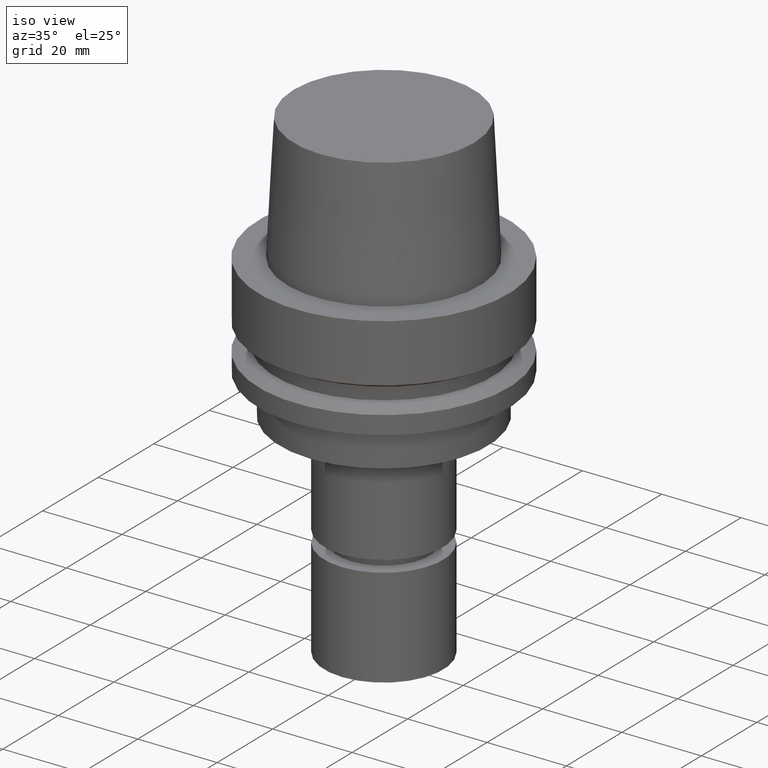
[diagram: clean part render]
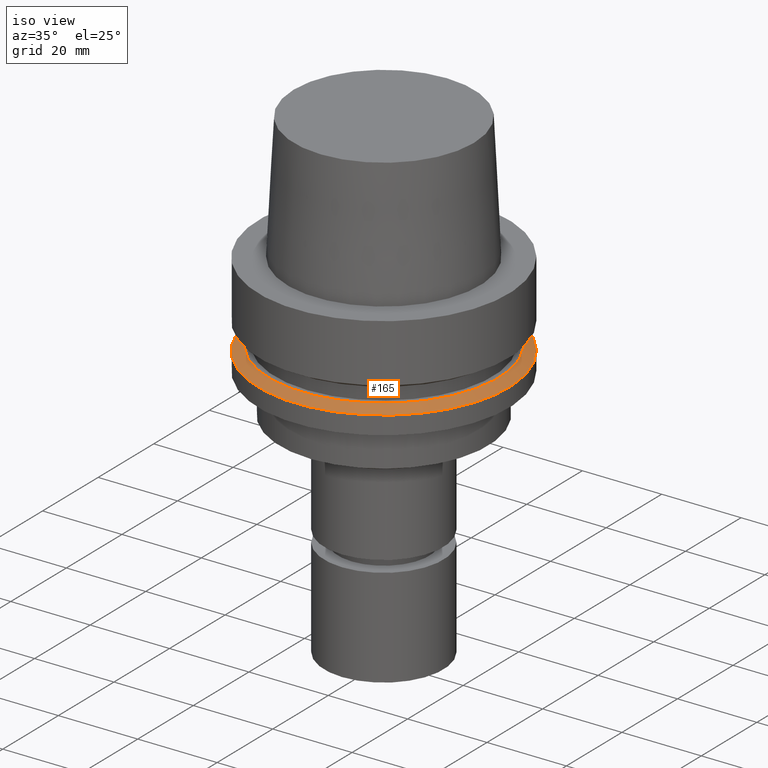
[diagram: same view with one face highlighted and labeled with its STEP entity id]
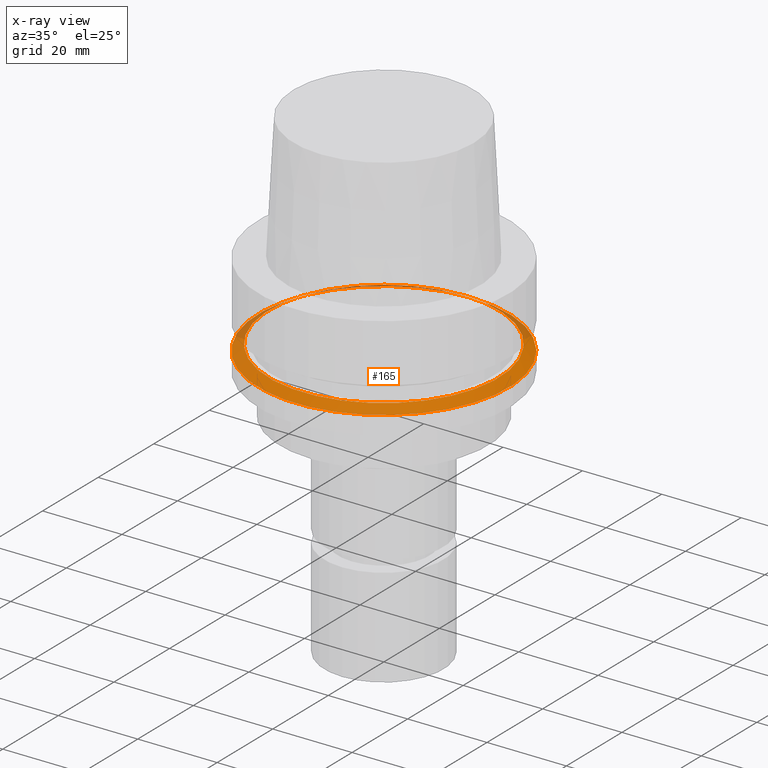
[diagram: x-ray of the same camera — body ghosted, the highlighted face saturated]
A machine part, iso view. The second image highlights one B-rep face of the part: STEP entity #165.
The next image is the same camera in x-ray: the body ghosted, the highlighted face saturated — about 12% of this face is hidden behind the body in this view.
In plain terms, the highlighted conical surface has half-angle 60 deg.
Its self-contained STEP definition (entity closure, byte-faithful):
#89=EDGE_CURVE('Unnamed[1]',#231,#231,#232,.T.);
#162=EDGE_CURVE('Unnamed[1]',#342,#342,#343,.T.);
#165=ADVANCED_FACE('Unnamed[1]',(#346,#347),#348,.T.);
#231=VERTEX_POINT('',#427);
#232=CIRCLE('',#428,28.8975952641919);
#342=VERTEX_POINT('',#565);
#343=CIRCLE('',#566,31.5);
#346=FACE_BOUND('',#570,.T.);
#347=FACE_BOUND('',#571,.T.);
#348=CONICAL_SURFACE('',#572,30.1987976320959,1.04719755119657);
#427=CARTESIAN_POINT('',(1.21699275665268E-015,28.8975952641919,-19.875));
#428=AXIS2_PLACEMENT_3D('',#648,#649,#650);
#565=CARTESIAN_POINT('',(1.30899429078397E-015,31.5,-21.3774990747592));
#566=AXIS2_PLACEMENT_3D('',#768,#769,#770);
#570=EDGE_LOOP('',(#772));
#571=EDGE_LOOP('',(#773));
#572=AXIS2_PLACEMENT_3D('',#774,#775,#776);
#648=CARTESIAN_POINT('',(1.21699275665268E-015,2.43398551330536E-015,-19.875));
#649=DIRECTION('',(-6.12323399573677E-017,-1.22464679914735E-016,1.0));
#650=DIRECTION('',(-1.23259516440783E-032,1.0,1.22464679914735E-016));
#768=CARTESIAN_POINT('',(1.30899429078397E-015,2.61798858156794E-015,-21.3774990747592));
#769=DIRECTION('',(-6.12323399573677E-017,-1.22464679914735E-016,1.0));
#770=DIRECTION('',(-1.23259516440783E-032,1.0,1.22464679914735E-016));
#772=ORIENTED_EDGE('',*,*,#89,.F.);
#773=ORIENTED_EDGE('',*,*,#162,.T.);
#774=CARTESIAN_POINT('',(1.26299352371833E-015,2.52598704743665E-015,-20.6262495373796));
#775=DIRECTION('',(6.12323399573677E-017,1.22464679914735E-016,-1.0));
#776=DIRECTION('',(-1.23259516440783E-032,1.0,1.22464679914735E-016));